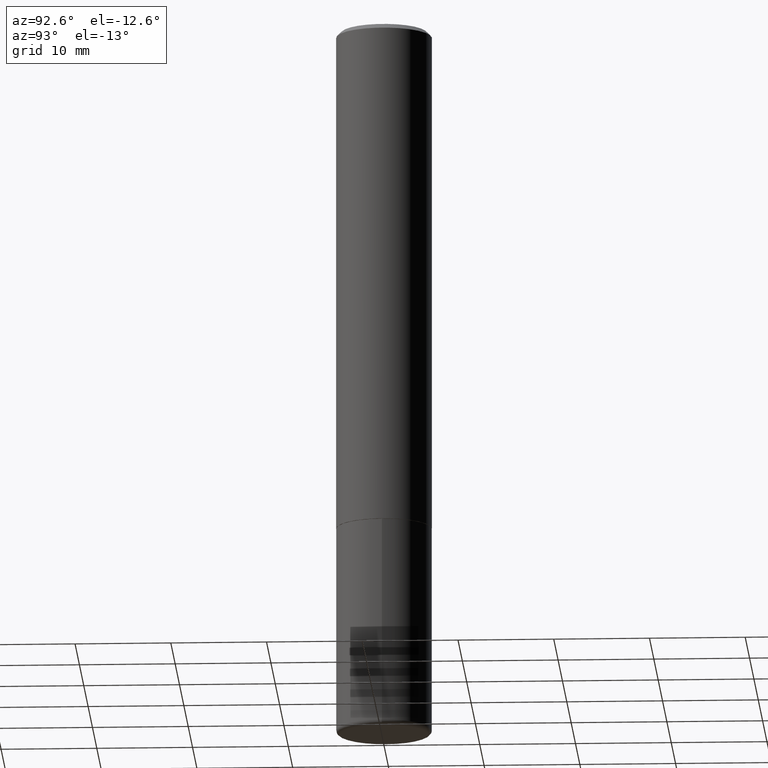
[diagram: clean part render]
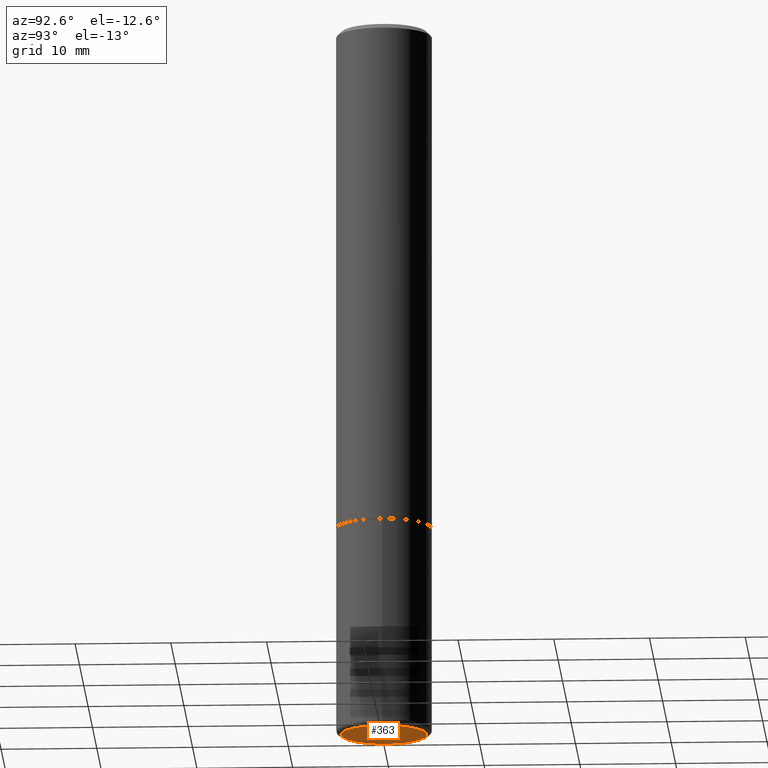
[diagram: same view with one face highlighted and labeled with its STEP entity id]
A machine part, auxiliary view. The second image highlights one B-rep face of the part: STEP entity #363.
In plain terms, the highlighted planar face has unit normal (0, -0, -1).
Its self-contained STEP definition (entity closure, byte-faithful):
#5 = DIRECTION ( 'NONE',  ( -1.000000000000000000, 6.982962677686265922E-15, -4.876176775795935793E-29 ) ) ;
#48 = EDGE_CURVE ( 'NONE', #199, #67, #403, .T. ) ;
#59 = ORIENTED_EDGE ( 'NONE', *, *, #242, .F. ) ;
#67 = VERTEX_POINT ( 'NONE', #237 ) ;
#70 = DIRECTION ( 'NONE',  ( 2.438088387897960049E-29, -3.491481338843145188E-15, -1.000000000000000000 ) ) ;
#72 = AXIS2_PLACEMENT_3D ( 'NONE', #295, #355, #384 ) ;
#96 = CARTESIAN_POINT ( 'NONE',  ( -0.1771500000000000019, -8.946540090277048352E-15, -2.952799999999999869 ) ) ;
#103 = EDGE_LOOP ( 'NONE', ( #59, #416 ) ) ;
#110 = DIRECTION ( 'NONE',  ( 1.000000000000000000, -6.982962677686272233E-15, 0.000000000000000000 ) ) ;
#141 = AXIS2_PLACEMENT_3D ( 'NONE', #152, #157, #110 ) ;
#152 = CARTESIAN_POINT ( 'NONE',  ( 7.220980290903470182E-29, -1.030964609733603853E-14, -2.952799999999999869 ) ) ;
#157 = DIRECTION ( 'NONE',  ( -2.445468806185136597E-29, 3.491481338843145583E-15, 1.000000000000000000 ) ) ;
#199 = VERTEX_POINT ( 'NONE', #96 ) ;
#201 = CIRCLE ( 'NONE', #72, 0.1771500000000000019 ) ;
#203 = FACE_OUTER_BOUND ( 'NONE', #103, .T. ) ;
#207 = AXIS2_PLACEMENT_3D ( 'NONE', #327, #70, #5 ) ;
#237 = CARTESIAN_POINT ( 'NONE',  ( 0.1771500000000000019, -1.154667793568816250E-14, -2.952799999999999869 ) ) ;
#242 = EDGE_CURVE ( 'NONE', #67, #199, #201, .T. ) ;
#295 = CARTESIAN_POINT ( 'NONE',  ( 7.220980290903470182E-29, -1.030964609733603853E-14, -2.952799999999999869 ) ) ;
#327 = CARTESIAN_POINT ( 'NONE',  ( 7.220980290903470182E-29, -1.030964609733603853E-14, -2.952799999999999869 ) ) ;
#355 = DIRECTION ( 'NONE',  ( -2.445468806185136597E-29, 3.491481338843145583E-15, 1.000000000000000000 ) ) ;
#361 = PLANE ( 'NONE',  #207 ) ;
#363 = ADVANCED_FACE ( 'NONE', ( #203 ), #361, .T. ) ;
#384 = DIRECTION ( 'NONE',  ( 1.000000000000000000, -6.982962677686272233E-15, 0.000000000000000000 ) ) ;
#403 = CIRCLE ( 'NONE', #141, 0.1771500000000000019 ) ;
#416 = ORIENTED_EDGE ( 'NONE', *, *, #48, .F. ) ;